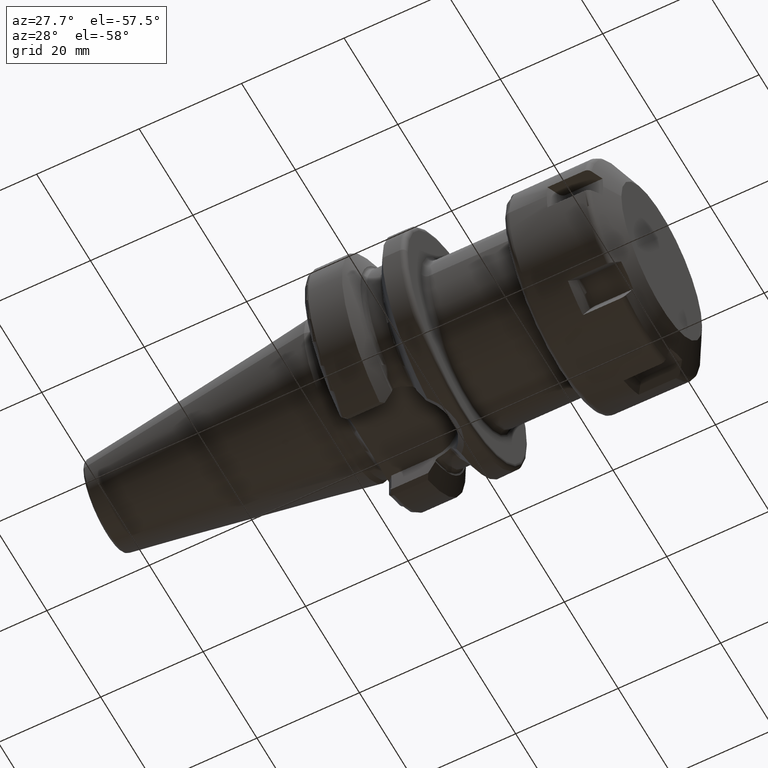
[diagram: clean part render]
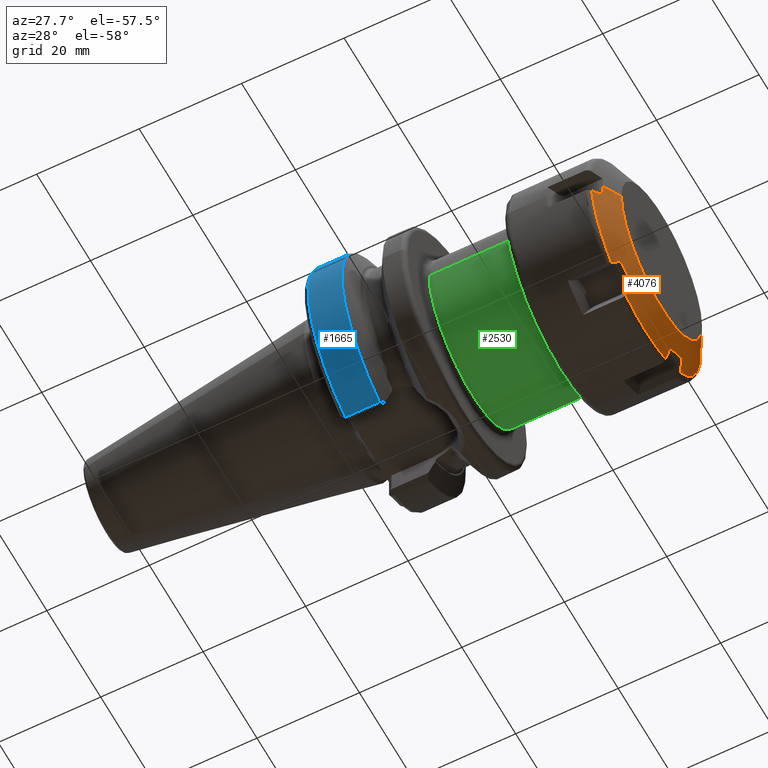
[diagram: same view with three faces highlighted in distinct colors, each labeled with its STEP entity id]
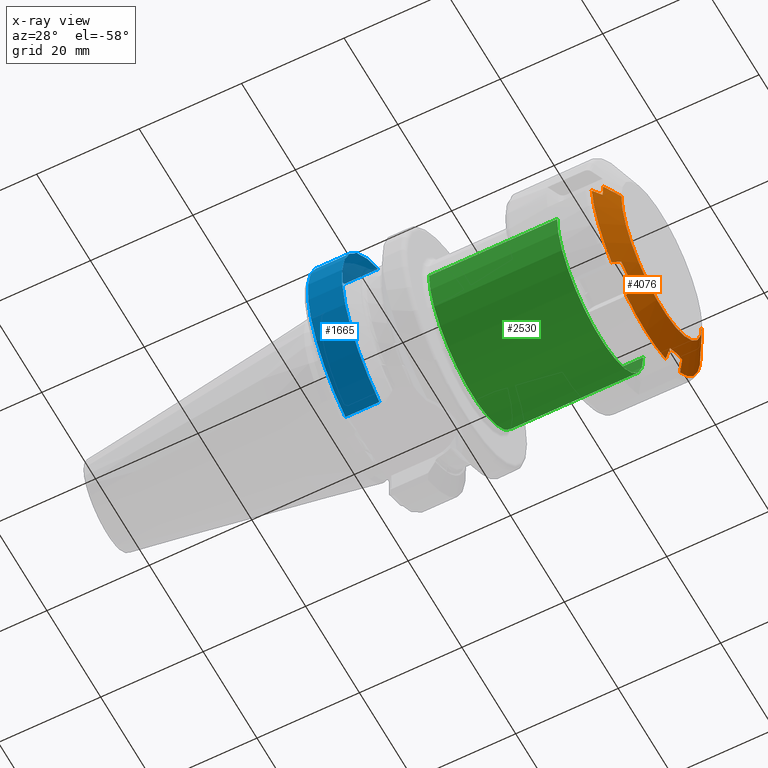
[diagram: x-ray of the same camera — body ghosted, the three highlighted faces saturated]
A machine part, auxiliary view with three faces highlighted in distinct colors.
The next image is the same camera in x-ray (body ghosted, the three faces saturated) — at least one of them is partly hidden behind the body in this view.
Their STEP definitions:

[orange] entity #4076 — the highlighted conical surface has half-angle 60 deg.
#3140=CARTESIAN_POINT('',(1.689674230311E1,7.405303719456E0,-1.898162537357E1));
#3141=CARTESIAN_POINT('',(1.708907504526E1,7.313084535866E0,-1.866001886072E1));
#3142=CARTESIAN_POINT('',(1.747048804972E1,7.130166601835E0,-1.802210821554E1));
#3143=CARTESIAN_POINT('',(1.784538315893E1,6.950287483250E0,-1.739479517924E1));
#3144=CARTESIAN_POINT('',(1.803119743883E1,6.861107026386E0,-1.708378596587E1));
#3146=CARTESIAN_POINT('',(1.689674230311E1,-1.915276904626E-14,0.E0));
#3147=DIRECTION('',(-1.E0,0.E0,0.E0));
#3148=DIRECTION('',(0.E0,3.634504892985E-1,-9.316135152673E-1));
#3149=AXIS2_PLACEMENT_3D('',#3146,#3147,#3148);
#3151=CARTESIAN_POINT('',(1.803119743883E1,-6.861107026386E0,
-1.708378596587E1));
#3152=CARTESIAN_POINT('',(1.784547076956E1,-6.950245435050E0,
-1.739464853974E1));
#3153=CARTESIAN_POINT('',(1.747066334160E1,-7.130082516612E0,
-1.802181497552E1));
#3154=CARTESIAN_POINT('',(1.708916272E1,-7.313042497819E0,-1.865987225663E1));
#3155=CARTESIAN_POINT('',(1.689674230311E1,-7.405303719456E0,
-1.898162537357E1));
#3157=CARTESIAN_POINT('',(1.803119743883E1,-1.136443912607E1,
-1.448378596587E1));
#3158=CARTESIAN_POINT('',(1.807831826555E1,-1.086395978015E1,
-1.477273785096E1));
#3159=CARTESIAN_POINT('',(1.814168574823E1,-9.863120560131E0,
-1.535057264405E1));
#3160=CARTESIAN_POINT('',(1.814168449187E1,-8.362394930781E0,
-1.621701699013E1));
#3161=CARTESIAN_POINT('',(1.807831703246E1,-7.361573275411E0,
-1.679484164227E1));
#3162=CARTESIAN_POINT('',(1.803119743883E1,-6.861107026386E0,
-1.708378596587E1));
#3164=CARTESIAN_POINT('',(1.689674230311E1,-1.273591791890E1,
-1.590399383057E1));
#3165=CARTESIAN_POINT('',(1.708907504526E1,-1.250350810055E1,
-1.566332641844E1));
#3166=CARTESIAN_POINT('',(1.747048804972E1,-1.204252024350E1,
-1.518595951818E1));
#3167=CARTESIAN_POINT('',(1.784538315893E1,-1.158919077723E1,
-1.471652311372E1));
#3168=CARTESIAN_POINT('',(1.803119743883E1,-1.136443912607E1,
-1.448378596587E1));
#3170=CARTESIAN_POINT('',(1.689674230311E1,-1.915276904626E-14,0.E0));
#3171=DIRECTION('',(-1.E0,0.E0,0.E0));
#3172=DIRECTION('',(0.E0,-6.250757260812E-1,-7.805641143840E-1));
#3173=AXIS2_PLACEMENT_3D('',#3170,#3171,#3172);
#3175=CARTESIAN_POINT('',(1.803119743883E1,-1.822554615245E1,-2.6E0));
#3176=CARTESIAN_POINT('',(1.784547076956E1,-1.853933024284E1,
-2.678235160582E0));
#3177=CARTESIAN_POINT('',(1.747066334160E1,-1.917239084941E1,
-2.836074897296E0));
#3178=CARTESIAN_POINT('',(1.708916272E1,-1.981644465452E1,-2.996655546247E0));
#3179=CARTESIAN_POINT('',(1.689674230311E1,-2.014122163836E1,
-3.077631542997E0));
#3181=CARTESIAN_POINT('',(1.813773006060E1,-1.822554615245E1,0.E0));
#3182=CARTESIAN_POINT('',(1.813773006060E1,-1.822554615245E1,
-2.889809035546E-1));
#3183=CARTESIAN_POINT('',(1.812978891864E1,-1.822554615245E1,
-8.668802635554E-1));
#3184=CARTESIAN_POINT('',(1.809415446357E1,-1.822554615245E1,
-1.733491685998E0));
#3185=CARTESIAN_POINT('',(1.805474752385E1,-1.822554615245E1,
-2.311174784706E0));
#3186=CARTESIAN_POINT('',(1.803119743883E1,-1.822554615245E1,-2.6E0));
#3188=DIRECTION('',(-5.E-1,-8.660254037844E-1,0.E0));
#3189=VECTOR('',#3188,3.724539878802E0);
#3190=CARTESIAN_POINT('',(2.E1,-1.5E1,0.E0));
#3191=LINE('',#3190,#3189);
#3192=CARTESIAN_POINT('',(2.E1,-2.266909448450E-14,0.E0));
#3193=DIRECTION('',(-1.E0,0.E0,0.E0));
#3194=DIRECTION('',(0.E0,1.E0,0.E0));
#3195=AXIS2_PLACEMENT_3D('',#3192,#3193,#3194);
#3197=DIRECTION('',(-5.E-1,8.660254037844E-1,1.219275797742E-14));
#3198=VECTOR('',#3197,3.724539878802E0);
#3199=CARTESIAN_POINT('',(2.E1,1.5E1,0.E0));
#3200=LINE('',#3199,#3198);
#3201=CARTESIAN_POINT('',(1.803119743883E1,1.822554615245E1,-2.6E0));
#3202=CARTESIAN_POINT('',(1.805475075341E1,1.822554615245E1,-2.311135176476E0));
#3203=CARTESIAN_POINT('',(1.809415978675E1,1.822554615245E1,-1.733399257211E0));
#3204=CARTESIAN_POINT('',(1.812979067473E1,1.822554615245E1,
-8.668016124823E-1));
#3205=CARTESIAN_POINT('',(1.813773006060E1,1.822554615245E1,
-2.889472613191E-1));
#3206=CARTESIAN_POINT('',(1.813773006060E1,1.822554615245E1,
4.663706011864E-14));
#3208=CARTESIAN_POINT('',(1.689674230311E1,2.014122163836E1,-3.077631542997E0));
#3209=CARTESIAN_POINT('',(1.708907504526E1,1.981659263641E1,-2.996692442277E0));
#3210=CARTESIAN_POINT('',(1.747048804972E1,1.917268684533E1,-2.836148697367E0));
#3211=CARTESIAN_POINT('',(1.784538315893E1,1.853947826048E1,-2.678272065523E0));
#3212=CARTESIAN_POINT('',(1.803119743883E1,1.822554615245E1,-2.6E0));
#3214=CARTESIAN_POINT('',(1.689674230311E1,-1.915276904626E-14,0.E0));
#3215=DIRECTION('',(-1.E0,0.E0,0.E0));
#3216=DIRECTION('',(0.E0,9.885262153796E-1,-1.510494008833E-1));
#3217=AXIS2_PLACEMENT_3D('',#3214,#3215,#3216);
#3219=CARTESIAN_POINT('',(1.803119743883E1,1.136443912607E1,-1.448378596587E1));
#3220=CARTESIAN_POINT('',(1.784547076956E1,1.158908480779E1,-1.471641337916E1));
#3221=CARTESIAN_POINT('',(1.747066334160E1,1.204230833280E1,-1.518574007823E1));
#3222=CARTESIAN_POINT('',(1.708916272E1,1.250340215670E1,-1.566321671038E1));
#3223=CARTESIAN_POINT('',(1.689674230311E1,1.273591791890E1,-1.590399383057E1));
#3225=CARTESIAN_POINT('',(1.803119743883E1,6.861107026386E0,-1.708378596587E1));
#3226=CARTESIAN_POINT('',(1.807831826555E1,7.361586372305E0,-1.679483408078E1));
#3227=CARTESIAN_POINT('',(1.814168574823E1,8.362425592320E0,-1.621699928769E1));
#3228=CARTESIAN_POINT('',(1.814168449187E1,9.863151221670E0,-1.535055494160E1));
#3229=CARTESIAN_POINT('',(1.807831703246E1,1.086397287704E1,-1.477273028946E1));
#3230=CARTESIAN_POINT('',(1.803119743883E1,1.136443912607E1,-1.448378596587E1));
#3507=CARTESIAN_POINT('',(1.813773006060E1,1.822554615245E1,
4.663706011864E-14));
#3524=CARTESIAN_POINT('',(1.813773006060E1,-1.822554615245E1,0.E0));
#3924=CARTESIAN_POINT('',(2.E1,1.5E1,0.E0));
#3925=CARTESIAN_POINT('',(2.E1,-1.5E1,0.E0));
#3926=VERTEX_POINT('',#3924);
#3927=VERTEX_POINT('',#3925);
#3938=VERTEX_POINT('',#3507);
#3939=VERTEX_POINT('',#3208);
#3940=VERTEX_POINT('',#3212);
#3983=VERTEX_POINT('',#3524);
#3984=VERTEX_POINT('',#3175);
#3985=VERTEX_POINT('',#3179);
#3998=VERTEX_POINT('',#3164);
#3999=VERTEX_POINT('',#3168);
#4000=VERTEX_POINT('',#3151);
#4001=VERTEX_POINT('',#3155);
#4012=VERTEX_POINT('',#3140);
#4013=VERTEX_POINT('',#3144);
#4014=VERTEX_POINT('',#3219);
#4015=VERTEX_POINT('',#3223);
#4038=CARTESIAN_POINT('',(1.844837115155E1,-2.091093176538E-14,0.E0));
#4039=DIRECTION('',(-1.E0,0.E0,0.E0));
#4040=DIRECTION('',(0.E0,1.E0,0.E0));
#4041=AXIS2_PLACEMENT_3D('',#4038,#4039,#4040);
#4042=CONICAL_SURFACE('',#4041,1.76875E1,6.E1);
#4044=ORIENTED_EDGE('',*,*,#4043,.F.);
#4046=ORIENTED_EDGE('',*,*,#4045,.T.);
#4048=ORIENTED_EDGE('',*,*,#4047,.F.);
#4050=ORIENTED_EDGE('',*,*,#4049,.F.);
#4052=ORIENTED_EDGE('',*,*,#4051,.F.);
#4054=ORIENTED_EDGE('',*,*,#4053,.T.);
#4056=ORIENTED_EDGE('',*,*,#4055,.F.);
#4058=ORIENTED_EDGE('',*,*,#4057,.F.);
#4060=ORIENTED_EDGE('',*,*,#4059,.F.);
#4061=ORIENTED_EDGE('',*,*,#4031,.F.);
#4063=ORIENTED_EDGE('',*,*,#4062,.T.);
#4065=ORIENTED_EDGE('',*,*,#4064,.F.);
#4067=ORIENTED_EDGE('',*,*,#4066,.F.);
#4069=ORIENTED_EDGE('',*,*,#4068,.T.);
#4071=ORIENTED_EDGE('',*,*,#4070,.F.);
#4073=ORIENTED_EDGE('',*,*,#4072,.F.);
#4074=EDGE_LOOP('',(#4044,#4046,#4048,#4050,#4052,#4054,#4056,#4058,#4060,#4061,
#4063,#4065,#4067,#4069,#4071,#4073));
#4075=FACE_OUTER_BOUND('',#4074,.F.);
#4076=ADVANCED_FACE('',(#4075),#4042,.T.);
#3145=B_SPLINE_CURVE_WITH_KNOTS('',3,(#3140,#3141,#3142,#3143,#3144),
.UNSPECIFIED.,.F.,.F.,(4,1,4),(0.E0,5.E-1,1.E0),.UNSPECIFIED.);
#3150=CIRCLE('',#3149,2.0375E1);
#3156=B_SPLINE_CURVE_WITH_KNOTS('',3,(#3151,#3152,#3153,#3154,#3155),
.UNSPECIFIED.,.F.,.F.,(4,1,4),(0.E0,5.E-1,1.E0),.UNSPECIFIED.);
#3163=B_SPLINE_CURVE_WITH_KNOTS('',3,(#3157,#3158,#3159,#3160,#3161,#3162),
.UNSPECIFIED.,.F.,.F.,(4,1,1,4),(0.E0,3.333333333333E-1,6.666666666667E-1,1.E0),
.UNSPECIFIED.);
#3169=B_SPLINE_CURVE_WITH_KNOTS('',3,(#3164,#3165,#3166,#3167,#3168),
.UNSPECIFIED.,.F.,.F.,(4,1,4),(0.E0,5.E-1,1.E0),.UNSPECIFIED.);
#3174=CIRCLE('',#3173,2.0375E1);
#3180=B_SPLINE_CURVE_WITH_KNOTS('',3,(#3175,#3176,#3177,#3178,#3179),
.UNSPECIFIED.,.F.,.F.,(4,1,4),(0.E0,5.E-1,1.E0),.UNSPECIFIED.);
#3187=B_SPLINE_CURVE_WITH_KNOTS('',3,(#3181,#3182,#3183,#3184,#3185,#3186),
.UNSPECIFIED.,.F.,.F.,(4,1,1,4),(0.E0,3.333333333333E-1,6.666666666667E-1,1.E0),
.UNSPECIFIED.);
#3196=CIRCLE('',#3195,1.5E1);
#3207=B_SPLINE_CURVE_WITH_KNOTS('',3,(#3201,#3202,#3203,#3204,#3205,#3206),
.UNSPECIFIED.,.F.,.F.,(4,1,1,4),(0.E0,3.333333333333E-1,6.666666666667E-1,1.E0),
.UNSPECIFIED.);
#3213=B_SPLINE_CURVE_WITH_KNOTS('',3,(#3208,#3209,#3210,#3211,#3212),
.UNSPECIFIED.,.F.,.F.,(4,1,4),(0.E0,5.E-1,1.E0),.UNSPECIFIED.);
#3218=CIRCLE('',#3217,2.0375E1);
#3224=B_SPLINE_CURVE_WITH_KNOTS('',3,(#3219,#3220,#3221,#3222,#3223),
.UNSPECIFIED.,.F.,.F.,(4,1,4),(0.E0,5.E-1,1.E0),.UNSPECIFIED.);
#3231=B_SPLINE_CURVE_WITH_KNOTS('',3,(#3225,#3226,#3227,#3228,#3229,#3230),
.UNSPECIFIED.,.F.,.F.,(4,1,1,4),(0.E0,3.333333333333E-1,6.666666666667E-1,1.E0),
.UNSPECIFIED.);
#4031=EDGE_CURVE('',#3926,#3927,#3196,.T.);
#4043=EDGE_CURVE('',#4012,#4013,#3145,.T.);
#4045=EDGE_CURVE('',#4012,#4001,#3150,.T.);
#4047=EDGE_CURVE('',#4000,#4001,#3156,.T.);
#4049=EDGE_CURVE('',#3999,#4000,#3163,.T.);
#4051=EDGE_CURVE('',#3998,#3999,#3169,.T.);
#4053=EDGE_CURVE('',#3998,#3985,#3174,.T.);
#4055=EDGE_CURVE('',#3984,#3985,#3180,.T.);
#4057=EDGE_CURVE('',#3983,#3984,#3187,.T.);
#4059=EDGE_CURVE('',#3927,#3983,#3191,.T.);
#4062=EDGE_CURVE('',#3926,#3938,#3200,.T.);
#4064=EDGE_CURVE('',#3940,#3938,#3207,.T.);
#4066=EDGE_CURVE('',#3939,#3940,#3213,.T.);
#4068=EDGE_CURVE('',#3939,#4015,#3218,.T.);
#4070=EDGE_CURVE('',#4014,#4015,#3224,.T.);
#4072=EDGE_CURVE('',#4013,#4014,#3231,.T.);

[blue] entity #1665 — the highlighted cylindrical surface (partial cylindrical patch) has radius 22.99 mm, axis along (1, 0, 0).
#190=CARTESIAN_POINT('',(9.650924158743E0,0.E0,0.E0));
#191=DIRECTION('',(1.E0,0.E0,0.E0));
#192=DIRECTION('',(0.E0,-4.135970895862E-1,9.104600197075E-1));
#193=AXIS2_PLACEMENT_3D('',#190,#191,#192);
#195=DIRECTION('',(9.999999999953E-1,1.691137854943E-6,-2.559578267209E-6));
#196=VECTOR('',#195,6.650924186073E0);
#197=CARTESIAN_POINT('',(2.999999972701E0,-9.014923952472E0,-2.114877606078E1));
#198=LINE('',#197,#196);
#199=CARTESIAN_POINT('',(3.E0,0.E0,0.E0));
#200=DIRECTION('',(-1.E0,0.E0,0.E0));
#201=DIRECTION('',(0.E0,-3.921232146517E-1,-9.199127048428E-1));
#202=AXIS2_PLACEMENT_3D('',#199,#200,#201);
#204=DIRECTION('',(-9.999999999877E-1,2.689360368840E-6,4.174830096868E-6));
#205=VECTOR('',#204,6.650924175867E0);
#206=CARTESIAN_POINT('',(9.650924158743E0,-9.508597089586E0,2.093147585308E1));
#207=LINE('',#206,#205);
#612=CARTESIAN_POINT('',(2.999999972701E0,-9.014923952472E0,-2.114877606078E1));
#1302=CARTESIAN_POINT('',(9.650924158743E0,-9.508597089586E0,2.093147585308E1));
#1303=CARTESIAN_POINT('',(9.650924158743E0,-9.014912704843E0,
-2.114879308434E1));
#1304=VERTEX_POINT('',#1302);
#1305=VERTEX_POINT('',#1303);
#1318=CARTESIAN_POINT('',(3.E0,-9.508621994147E0,2.093146453960E1));
#1319=VERTEX_POINT('',#1318);
#1340=VERTEX_POINT('',#612);
#1651=CARTESIAN_POINT('',(-5.192E1,0.E0,0.E0));
#1652=DIRECTION('',(1.E0,0.E0,0.E0));
#1653=DIRECTION('',(0.E0,-1.E0,0.E0));
#1654=AXIS2_PLACEMENT_3D('',#1651,#1652,#1653);
#1655=CYLINDRICAL_SURFACE('',#1654,2.299E1);
#1656=ORIENTED_EDGE('',*,*,#1640,.T.);
#1658=ORIENTED_EDGE('',*,*,#1657,.F.);
#1660=ORIENTED_EDGE('',*,*,#1659,.T.);
#1662=ORIENTED_EDGE('',*,*,#1661,.F.);
#1663=EDGE_LOOP('',(#1656,#1658,#1660,#1662));
#1664=FACE_OUTER_BOUND('',#1663,.F.);
#1665=ADVANCED_FACE('',(#1664),#1655,.T.);
#194=CIRCLE('',#193,2.299E1);
#203=CIRCLE('',#202,2.299E1);
#1640=EDGE_CURVE('',#1304,#1305,#194,.T.);
#1657=EDGE_CURVE('',#1340,#1305,#198,.T.);
#1659=EDGE_CURVE('',#1340,#1319,#203,.T.);
#1661=EDGE_CURVE('',#1304,#1319,#207,.T.);

[green] entity #2530 — the highlighted cylindrical surface (partial cylindrical patch) has radius 16 mm, axis along (1, 0, 0).
#852=CARTESIAN_POINT('',(2.3E1,0.E0,0.E0));
#853=DIRECTION('',(1.E0,0.E0,0.E0));
#854=DIRECTION('',(0.E0,-1.E0,0.E0));
#855=AXIS2_PLACEMENT_3D('',#852,#853,#854);
#857=DIRECTION('',(-1.E0,0.E0,-8.660364981460E-14));
#858=VECTOR('',#857,2.5E1);
#859=CARTESIAN_POINT('',(4.8E1,-1.6E1,0.E0));
#860=LINE('',#859,#858);
#861=CARTESIAN_POINT('',(4.8E1,0.E0,0.E0));
#862=DIRECTION('',(-1.E0,0.E0,0.E0));
#863=DIRECTION('',(0.E0,1.E0,0.E0));
#864=AXIS2_PLACEMENT_3D('',#861,#862,#863);
#866=DIRECTION('',(-1.E0,0.E0,8.637061508933E-14));
#867=VECTOR('',#866,2.5E1);
#868=CARTESIAN_POINT('',(4.8E1,1.6E1,0.E0));
#869=LINE('',#868,#867);
#1371=CARTESIAN_POINT('',(2.3E1,-1.6E1,0.E0));
#1372=CARTESIAN_POINT('',(2.3E1,1.6E1,0.E0));
#1373=VERTEX_POINT('',#1371);
#1374=VERTEX_POINT('',#1372);
#1375=CARTESIAN_POINT('',(4.8E1,1.6E1,0.E0));
#1376=VERTEX_POINT('',#1375);
#1377=CARTESIAN_POINT('',(4.8E1,-1.6E1,0.E0));
#1378=VERTEX_POINT('',#1377);
#2518=CARTESIAN_POINT('',(2.07E1,0.E0,0.E0));
#2519=DIRECTION('',(1.E0,0.E0,0.E0));
#2520=DIRECTION('',(0.E0,-1.E0,0.E0));
#2521=AXIS2_PLACEMENT_3D('',#2518,#2519,#2520);
#2522=CYLINDRICAL_SURFACE('',#2521,1.6E1);
#2523=ORIENTED_EDGE('',*,*,#2483,.F.);
#2524=ORIENTED_EDGE('',*,*,#2513,.F.);
#2526=ORIENTED_EDGE('',*,*,#2525,.F.);
#2527=ORIENTED_EDGE('',*,*,#2509,.T.);
#2528=EDGE_LOOP('',(#2523,#2524,#2526,#2527));
#2529=FACE_OUTER_BOUND('',#2528,.F.);
#2530=ADVANCED_FACE('',(#2529),#2522,.T.);
#856=CIRCLE('',#855,1.6E1);
#865=CIRCLE('',#864,1.6E1);
#2483=EDGE_CURVE('',#1373,#1374,#856,.T.);
#2509=EDGE_CURVE('',#1376,#1374,#869,.T.);
#2513=EDGE_CURVE('',#1378,#1373,#860,.T.);
#2525=EDGE_CURVE('',#1376,#1378,#865,.T.);